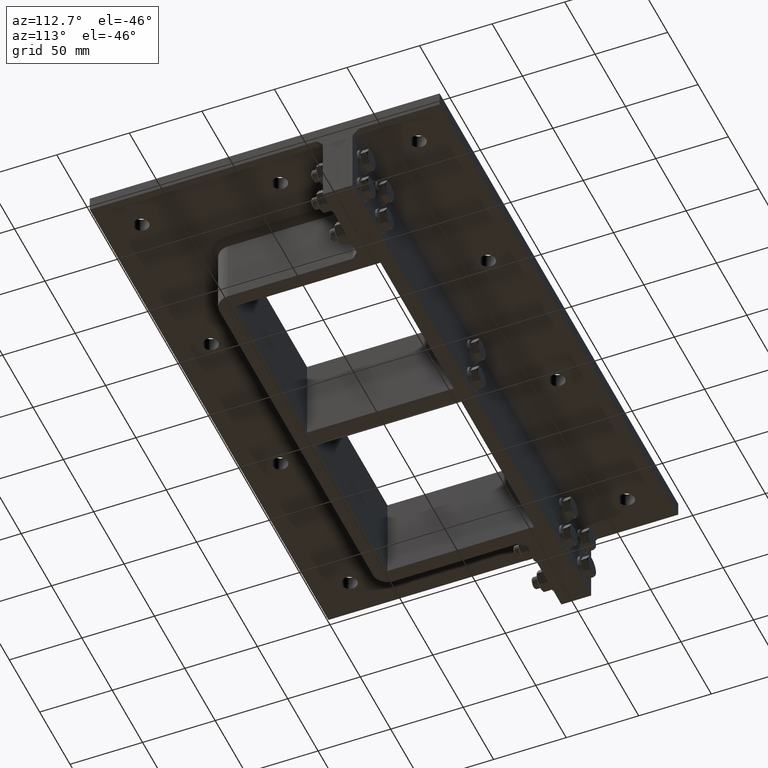
[diagram: clean part render]
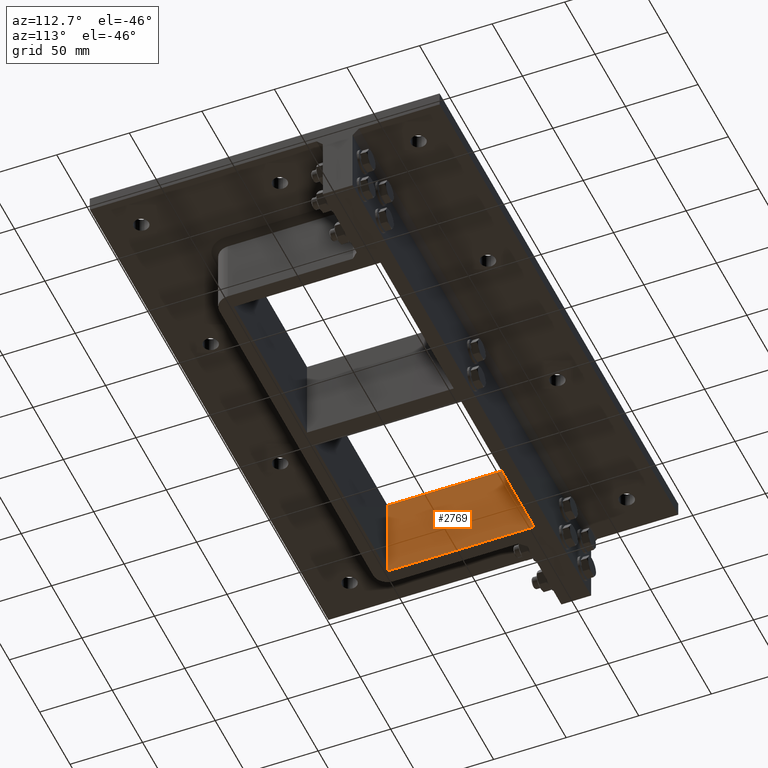
[diagram: same view with one face highlighted and labeled with its STEP entity id]
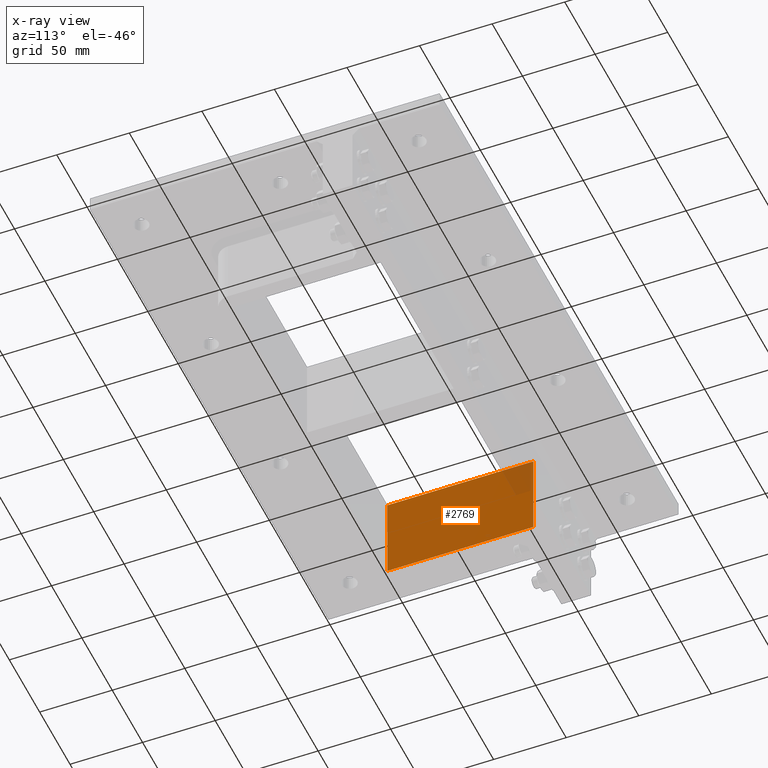
[diagram: x-ray of the same camera — body ghosted, the highlighted face saturated]
A machine part, auxiliary view. The second image highlights one B-rep face of the part: STEP entity #2769.
The next image is the same camera in x-ray: the body ghosted, the highlighted face saturated — about 6% of this face is hidden behind the body in this view.
In plain terms, the highlighted planar face has unit normal (-1, -0, 0).
Its self-contained STEP definition (entity closure, byte-faithful):
#474=FACE_OUTER_BOUND('',#645,.T.);
#645=EDGE_LOOP('',(#2025,#2026,#2027,#2028));
#895=LINE('',#4425,#1114);
#896=LINE('',#4427,#1115);
#897=LINE('',#4429,#1116);
#898=LINE('',#4430,#1117);
#1114=VECTOR('',#3589,10.);
#1115=VECTOR('',#3590,10.);
#1116=VECTOR('',#3591,10.);
#1117=VECTOR('',#3592,10.);
#1340=VERTEX_POINT('',#4423);
#1341=VERTEX_POINT('',#4424);
#1342=VERTEX_POINT('',#4426);
#1343=VERTEX_POINT('',#4428);
#1606=EDGE_CURVE('',#1340,#1341,#895,.T.);
#1607=EDGE_CURVE('',#1340,#1342,#896,.T.);
#1608=EDGE_CURVE('',#1343,#1342,#897,.T.);
#1609=EDGE_CURVE('',#1343,#1341,#898,.T.);
#2025=ORIENTED_EDGE('',*,*,#1606,.F.);
#2026=ORIENTED_EDGE('',*,*,#1607,.T.);
#2027=ORIENTED_EDGE('',*,*,#1608,.F.);
#2028=ORIENTED_EDGE('',*,*,#1609,.T.);
#2669=PLANE('',#3172);
#2769=ADVANCED_FACE('',(#474),#2669,.F.);
#3172=AXIS2_PLACEMENT_3D('',#4422,#3587,#3588);
#3587=DIRECTION('center_axis',(-1.,-3.51753829584208E-16,0.));
#3588=DIRECTION('ref_axis',(-3.51753829584208E-16,1.,0.));
#3589=DIRECTION('',(-3.51753829584208E-16,1.,0.));
#3590=DIRECTION('',(0.,0.,-1.));
#3591=DIRECTION('',(3.51753829584208E-16,-1.,0.));
#3592=DIRECTION('',(0.,0.,1.));
#4422=CARTESIAN_POINT('Origin',(-126.5,-50.5,0.));
#4423=CARTESIAN_POINT('',(-126.5,-50.5,0.));
#4424=CARTESIAN_POINT('',(-126.5,50.,0.));
#4425=CARTESIAN_POINT('',(-126.5,-25.25,0.));
#4426=CARTESIAN_POINT('',(-126.5,-50.5,-60.));
#4427=CARTESIAN_POINT('',(-126.5,-50.5,0.));
#4428=CARTESIAN_POINT('',(-126.5,50.,-60.));
#4429=CARTESIAN_POINT('',(-126.5,-25.25,-60.));
#4430=CARTESIAN_POINT('',(-126.5,50.,0.));